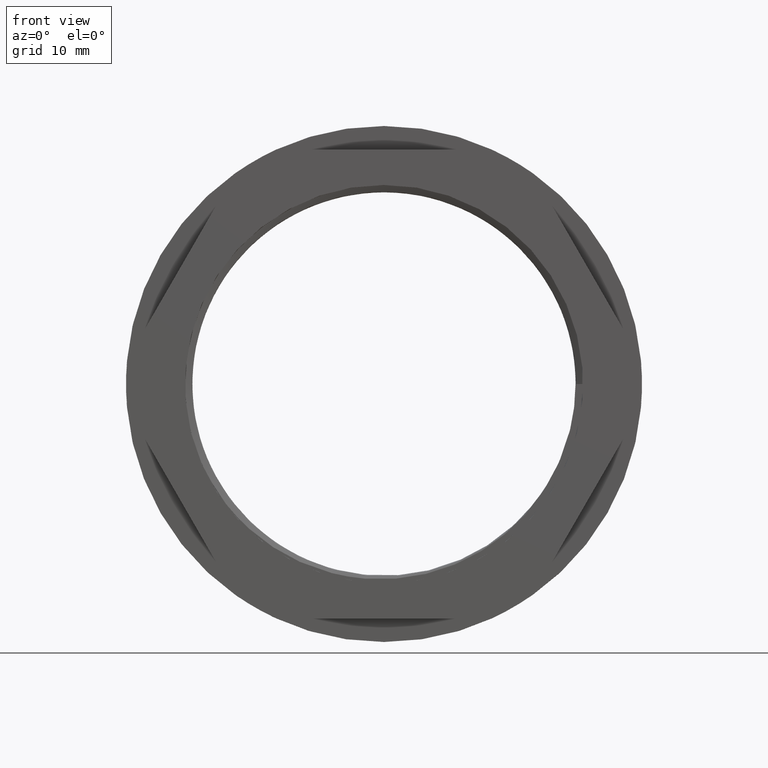
[diagram: clean part render]
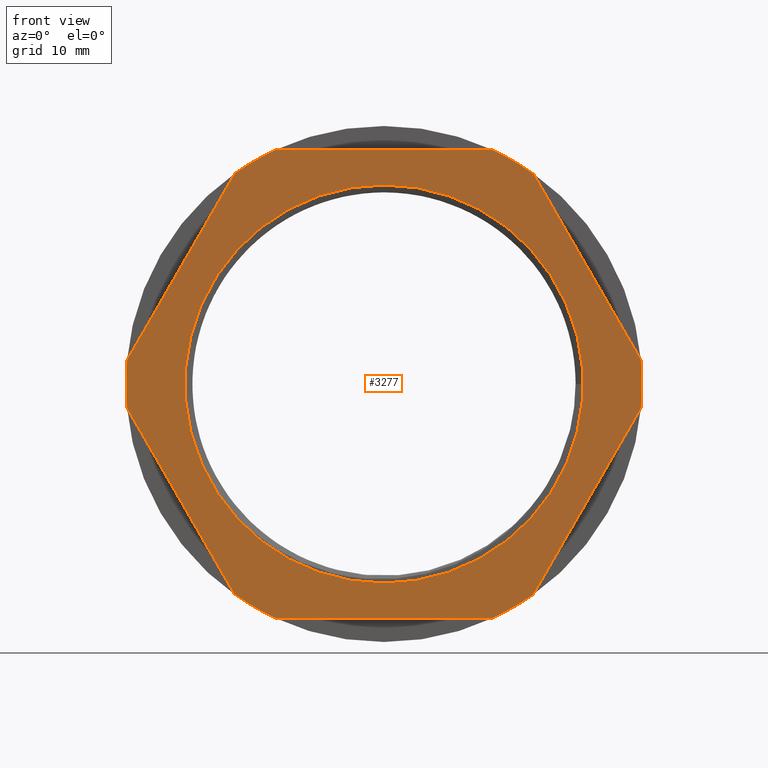
[diagram: same view with one face highlighted and labeled with its STEP entity id]
A machine part, front view. The second image highlights one B-rep face of the part: STEP entity #3277.
In plain terms, the highlighted planar face has unit normal (0, 1, 0).
Its self-contained STEP definition (entity closure, byte-faithful):
#24 = DIRECTION ( 'NONE',  ( -1.000000000000000000, 0.0000000000000000000, -1.716930969985323800E-016 ) ) ;
#45 = CARTESIAN_POINT ( 'NONE',  ( -20.20725942163692300, 0.0000000000000000000, 35.00000000000002100 ) ) ;
#277 = DIRECTION ( 'NONE',  ( 0.0000000000000000000, 1.000000000000000000, 0.0000000000000000000 ) ) ;
#278 = CARTESIAN_POINT ( 'NONE',  ( 0.0000000000000000000, 0.0000000000000000000, 0.0000000000000000000 ) ) ;
#293 = DIRECTION ( 'NONE',  ( 0.0000000000000000000, 0.0000000000000000000, 1.000000000000000000 ) ) ;
#302 = DIRECTION ( 'NONE',  ( -0.0000000000000000000, -1.000000000000000000, -0.0000000000000000000 ) ) ;
#304 = DIRECTION ( 'NONE',  ( -0.4999999999999995600, 0.0000000000000000000, 0.8660254037844388200 ) ) ;
#306 = LINE ( 'NONE', #307, #3057 ) ;
#307 = CARTESIAN_POINT ( 'NONE',  ( -22.29138166628271400, 0.0000000000000000000, -31.39019438308905000 ) ) ;
#309 = DIRECTION ( 'NONE',  ( 0.0000000000000000000, 0.0000000000000000000, 1.000000000000000000 ) ) ;
#311 = CARTESIAN_POINT ( 'NONE',  ( 0.0000000000000000000, 0.0000000000000000000, 0.0000000000000000000 ) ) ;
#322 = CARTESIAN_POINT ( 'NONE',  ( 0.0000000000000000000, 0.0000000000000000000, 0.0000000000000000000 ) ) ;
#323 = DIRECTION ( 'NONE',  ( 0.0000000000000000000, 1.000000000000000000, 0.0000000000000000000 ) ) ;
#324 = DIRECTION ( 'NONE',  ( 0.0000000000000000000, 0.0000000000000000000, 1.000000000000000000 ) ) ;
#336 = LINE ( 'NONE', #366, #3050 ) ;
#366 = CARTESIAN_POINT ( 'NONE',  ( 22.29138166628266800, 0.0000000000000000000, 31.39019438308907800 ) ) ;
#372 = DIRECTION ( 'NONE',  ( 0.4999999999999993900, 0.0000000000000000000, -0.8660254037844389300 ) ) ;
#479 = CARTESIAN_POINT ( 'NONE',  ( 0.0000000000000000000, 0.0000000000000000000, 0.0000000000000000000 ) ) ;
#480 = DIRECTION ( 'NONE',  ( 0.0000000000000000000, 1.000000000000000000, 0.0000000000000000000 ) ) ;
#481 = DIRECTION ( 'NONE',  ( 0.0000000000000000000, 0.0000000000000000000, 1.000000000000000000 ) ) ;
#652 = CARTESIAN_POINT ( 'NONE',  ( 0.0000000000000000000, 0.0000000000000000000, 0.0000000000000000000 ) ) ;
#653 = DIRECTION ( 'NONE',  ( 0.0000000000000000000, 1.000000000000000000, 0.0000000000000000000 ) ) ;
#667 = LINE ( 'NONE', #45, #3065 ) ;
#668 = DIRECTION ( 'NONE',  ( 0.0000000000000000000, 0.0000000000000000000, 1.000000000000000000 ) ) ;
#957 = FACE_BOUND ( 'NONE', #1901, .T. ) ;
#964 = FACE_OUTER_BOUND ( 'NONE', #1882, .T. ) ;
#981 = PLANE ( 'NONE',  #3099 ) ;
#986 = DIRECTION ( 'NONE',  ( 0.0000000000000000000, -0.0000000000000000000, 1.000000000000000000 ) ) ;
#991 = DIRECTION ( 'NONE',  ( 0.0000000000000000000, 1.000000000000000000, 0.0000000000000000000 ) ) ;
#1003 = CARTESIAN_POINT ( 'NONE',  ( 40.41451884327380400, 0.0000000000000000000, -2.348128987077080300E-014 ) ) ;
#1340 = ORIENTED_EDGE ( 'NONE', *, *, #3213, .F. ) ;
#1342 = ORIENTED_EDGE ( 'NONE', *, *, #3200, .F. ) ;
#1360 = ORIENTED_EDGE ( 'NONE', *, *, #3208, .F. ) ;
#1388 = ORIENTED_EDGE ( 'NONE', *, *, #3205, .F. ) ;
#1393 = ORIENTED_EDGE ( 'NONE', *, *, #3223, .F. ) ;
#1394 = ORIENTED_EDGE ( 'NONE', *, *, #3172, .F. ) ;
#1397 = ORIENTED_EDGE ( 'NONE', *, *, #3163, .F. ) ;
#1400 = ORIENTED_EDGE ( 'NONE', *, *, #3176, .F. ) ;
#1476 = ORIENTED_EDGE ( 'NONE', *, *, #3238, .T. ) ;
#1477 = ORIENTED_EDGE ( 'NONE', *, *, #3233, .F. ) ;
#1483 = ORIENTED_EDGE ( 'NONE', *, *, #3195, .F. ) ;
#1535 = CARTESIAN_POINT ( 'NONE',  ( -22.29138166628266800, 0.0000000000000000000, 31.39019438308907800 ) ) ;
#1555 = CARTESIAN_POINT ( 'NONE',  ( 3.637200993467639900E-015, 0.0000000000000000000, -29.70000000000000300 ) ) ;
#1561 = CARTESIAN_POINT ( 'NONE',  ( 22.29138166628262500, 0.0000000000000000000, -31.39019438308910600 ) ) ;
#1564 = CARTESIAN_POINT ( 'NONE',  ( 38.33039659862806300, 0.0000000000000000000, -3.609805616910899900 ) ) ;
#1572 = CARTESIAN_POINT ( 'NONE',  ( 0.0000000000000000000, 0.0000000000000000000, 29.70000000000000300 ) ) ;
#1582 = CARTESIAN_POINT ( 'NONE',  ( 22.29138166628266000, 0.0000000000000000000, 31.39019438308907100 ) ) ;
#1584 = CARTESIAN_POINT ( 'NONE',  ( -16.03901493234539200, 0.0000000000000000000, 35.00000000000002100 ) ) ;
#1586 = CARTESIAN_POINT ( 'NONE',  ( -38.33039659862806300, 0.0000000000000000000, -3.609805616910968200 ) ) ;
#1590 = CARTESIAN_POINT ( 'NONE',  ( -22.29138166628271400, 0.0000000000000000000, -31.39019438308905000 ) ) ;
#1591 = CARTESIAN_POINT ( 'NONE',  ( 16.03901493234536700, 0.0000000000000000000, 35.00000000000002800 ) ) ;
#1593 = CARTESIAN_POINT ( 'NONE',  ( -16.03901493234537800, 0.0000000000000000000, -35.00000000000002800 ) ) ;
#1601 = CARTESIAN_POINT ( 'NONE',  ( 38.33039659862807000, 0.0000000000000000000, -3.609805616910905600 ) ) ;
#1608 = DIRECTION ( 'NONE',  ( -0.5000000000000001100, 0.0000000000000000000, -0.8660254037844384900 ) ) ;
#1620 = CARTESIAN_POINT ( 'NONE',  ( -38.33039659862806300, 0.0000000000000000000, 3.609805616910937200 ) ) ;
#1622 = LINE ( 'NONE', #1601, #3135 ) ;
#1643 = LINE ( 'NONE', #1645, #3147 ) ;
#1645 = CARTESIAN_POINT ( 'NONE',  ( 40.41451884327380400, 0.0000000000000000000, -35.00000000000002800 ) ) ;
#1648 = DIRECTION ( 'NONE',  ( -1.000000000000000000, -0.0000000000000000000, 0.0000000000000000000 ) ) ;
#1727 = DIRECTION ( 'NONE',  ( 0.0000000000000000000, 1.000000000000000000, 0.0000000000000000000 ) ) ;
#1732 = DIRECTION ( 'NONE',  ( 0.0000000000000000000, 0.0000000000000000000, 1.000000000000000000 ) ) ;
#1736 = CARTESIAN_POINT ( 'NONE',  ( 0.0000000000000000000, 0.0000000000000000000, 0.0000000000000000000 ) ) ;
#1737 = CARTESIAN_POINT ( 'NONE',  ( 0.0000000000000000000, 0.0000000000000000000, 0.0000000000000000000 ) ) ;
#1738 = DIRECTION ( 'NONE',  ( 0.0000000000000000000, 0.0000000000000000000, 1.000000000000000000 ) ) ;
#1740 = DIRECTION ( 'NONE',  ( -0.0000000000000000000, -1.000000000000000000, -0.0000000000000000000 ) ) ;
#1762 = DIRECTION ( 'NONE',  ( 0.0000000000000000000, 1.000000000000000000, 0.0000000000000000000 ) ) ;
#1763 = DIRECTION ( 'NONE',  ( 0.0000000000000000000, 0.0000000000000000000, 1.000000000000000000 ) ) ;
#1765 = CARTESIAN_POINT ( 'NONE',  ( 0.0000000000000000000, 0.0000000000000000000, 0.0000000000000000000 ) ) ;
#1783 = CARTESIAN_POINT ( 'NONE',  ( -38.33039659862807000, 0.0000000000000000000, 3.609805616910942000 ) ) ;
#1785 = LINE ( 'NONE', #1783, #3029 ) ;
#1787 = DIRECTION ( 'NONE',  ( 0.5000000000000003300, 0.0000000000000000000, 0.8660254037844383700 ) ) ;
#1881 = VERTEX_POINT ( 'NONE', #1591 ) ;
#1882 = EDGE_LOOP ( 'NONE', ( #1476, #1477, #1483, #1952, #1388, #1393, #1394, #1360, #1397, #1949, #1340, #1400 ) ) ;
#1884 = CARTESIAN_POINT ( 'NONE',  ( 38.33039659862807000, 0.0000000000000000000, 3.609805616910885200 ) ) ;
#1890 = VERTEX_POINT ( 'NONE', #1884 ) ;
#1891 = VERTEX_POINT ( 'NONE', #1940 ) ;
#1899 = VERTEX_POINT ( 'NONE', #1561 ) ;
#1901 = EDGE_LOOP ( 'NONE', ( #1990, #1342 ) ) ;
#1920 = VERTEX_POINT ( 'NONE', #1582 ) ;
#1921 = VERTEX_POINT ( 'NONE', #1564 ) ;
#1940 = CARTESIAN_POINT ( 'NONE',  ( 16.03901493234537800, 0.0000000000000000000, -35.00000000000002800 ) ) ;
#1944 = VERTEX_POINT ( 'NONE', #1584 ) ;
#1946 = VERTEX_POINT ( 'NONE', #1593 ) ;
#1949 = ORIENTED_EDGE ( 'NONE', *, *, #3189, .F. ) ;
#1952 = ORIENTED_EDGE ( 'NONE', *, *, #3199, .F. ) ;
#1956 = VERTEX_POINT ( 'NONE', #1555 ) ;
#1961 = VERTEX_POINT ( 'NONE', #1590 ) ;
#1967 = VERTEX_POINT ( 'NONE', #1535 ) ;
#1970 = VERTEX_POINT ( 'NONE', #1586 ) ;
#1979 = VERTEX_POINT ( 'NONE', #1572 ) ;
#1990 = ORIENTED_EDGE ( 'NONE', *, *, #3182, .F. ) ;
#1999 = VERTEX_POINT ( 'NONE', #1620 ) ;
#3012 = CIRCLE ( 'NONE', #3014, 38.50000000000000000 ) ;
#3014 = AXIS2_PLACEMENT_3D ( 'NONE', #311, #277, #309 ) ;
#3020 = CIRCLE ( 'NONE', #3021, 38.50000000000000000 ) ;
#3021 = AXIS2_PLACEMENT_3D ( 'NONE', #479, #480, #481 ) ;
#3025 = AXIS2_PLACEMENT_3D ( 'NONE', #278, #302, #293 ) ;
#3029 = VECTOR ( 'NONE', #1787, 1000.000000000000100 ) ;
#3031 = CIRCLE ( 'NONE', #3043, 38.50000000000000000 ) ;
#3037 = CIRCLE ( 'NONE', #3055, 38.50000000000000000 ) ;
#3039 = CIRCLE ( 'NONE', #3025, 29.70000000000000300 ) ;
#3043 = AXIS2_PLACEMENT_3D ( 'NONE', #1765, #1762, #1763 ) ;
#3050 = VECTOR ( 'NONE', #372, 1000.000000000000100 ) ;
#3055 = AXIS2_PLACEMENT_3D ( 'NONE', #322, #323, #324 ) ;
#3057 = VECTOR ( 'NONE', #304, 1000.000000000000200 ) ;
#3058 = CIRCLE ( 'NONE', #3059, 38.50000000000000000 ) ;
#3059 = AXIS2_PLACEMENT_3D ( 'NONE', #652, #653, #668 ) ;
#3065 = VECTOR ( 'NONE', #24, 1000.000000000000000 ) ;
#3099 = AXIS2_PLACEMENT_3D ( 'NONE', #1003, #991, #986 ) ;
#3131 = AXIS2_PLACEMENT_3D ( 'NONE', #1736, #1727, #1732 ) ;
#3135 = VECTOR ( 'NONE', #1608, 1000.000000000000200 ) ;
#3136 = CIRCLE ( 'NONE', #3144, 29.70000000000000300 ) ;
#3143 = CIRCLE ( 'NONE', #3131, 38.50000000000000000 ) ;
#3144 = AXIS2_PLACEMENT_3D ( 'NONE', #1737, #1740, #1738 ) ;
#3147 = VECTOR ( 'NONE', #1648, 1000.000000000000000 ) ;
#3163 = EDGE_CURVE ( 'NONE', #1921, #1899, #1622, .T. ) ;
#3172 = EDGE_CURVE ( 'NONE', #1891, #1946, #1643, .T. ) ;
#3176 = EDGE_CURVE ( 'NONE', #1881, #1920, #3143, .T. ) ;
#3182 = EDGE_CURVE ( 'NONE', #1979, #1956, #3136, .T. ) ;
#3189 = EDGE_CURVE ( 'NONE', #1890, #1921, #3031, .T. ) ;
#3195 = EDGE_CURVE ( 'NONE', #1999, #1967, #1785, .T. ) ;
#3199 = EDGE_CURVE ( 'NONE', #1970, #1999, #3012, .T. ) ;
#3200 = EDGE_CURVE ( 'NONE', #1956, #1979, #3039, .T. ) ;
#3205 = EDGE_CURVE ( 'NONE', #1961, #1970, #306, .T. ) ;
#3208 = EDGE_CURVE ( 'NONE', #1899, #1891, #3037, .T. ) ;
#3213 = EDGE_CURVE ( 'NONE', #1920, #1890, #336, .T. ) ;
#3223 = EDGE_CURVE ( 'NONE', #1946, #1961, #3020, .T. ) ;
#3233 = EDGE_CURVE ( 'NONE', #1967, #1944, #3058, .T. ) ;
#3238 = EDGE_CURVE ( 'NONE', #1881, #1944, #667, .T. ) ;
#3277 = ADVANCED_FACE ( 'NONE', ( #964, #957 ), #981, .F. ) ;